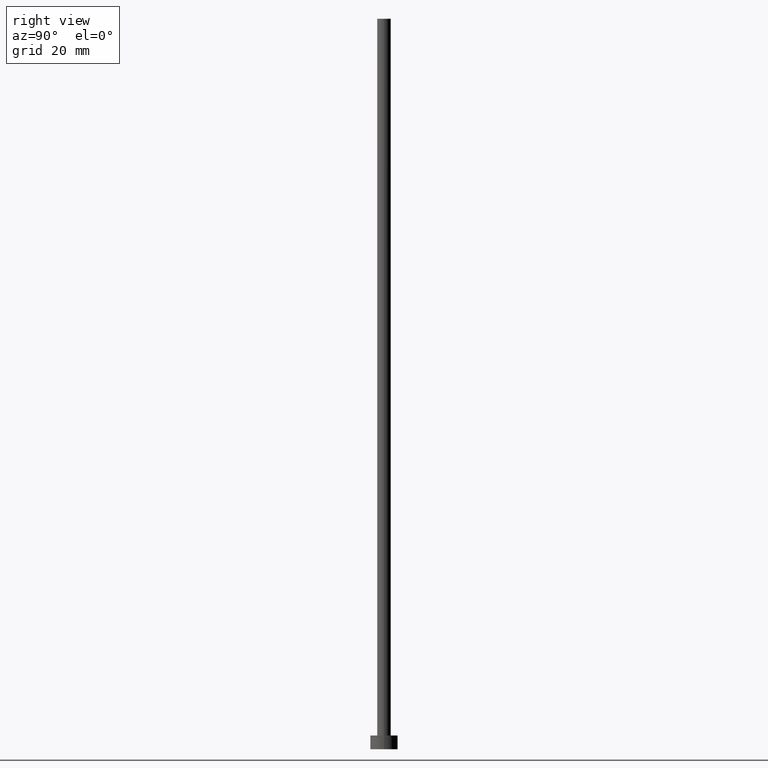
[diagram: clean part render]
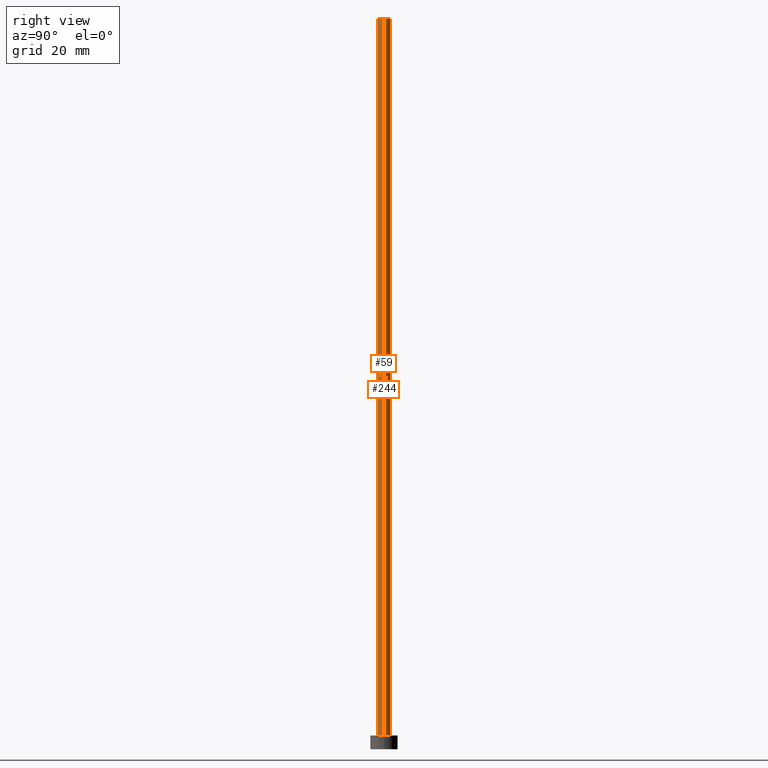
[diagram: same view with one multi-face feature highlighted, each face labeled with its STEP entity id]
A machine part, right view. The highlighted faces form ONE feature: a constant-radius fillet chain: 2 tangent blend faces with common blend radius 1.5 mm. The faces share edges in the B-rep.
Their STEP definitions:
[1] entity #244 (Cylinder):
#4 = VERTEX_POINT ( 'NONE', #164 ) ;
#10 = CARTESIAN_POINT ( 'NONE',  ( 1.500000000000000222, 1.836970198721030181E-16, 3.000000000000000000 ) ) ;
#15 = EDGE_CURVE ( 'NONE', #68, #62, #43, .T. ) ;
#21 = ORIENTED_EDGE ( 'NONE', *, *, #123, .T. ) ;
#27 = ORIENTED_EDGE ( 'NONE', *, *, #211, .F. ) ;
#37 = DIRECTION ( 'NONE',  ( -0.000000000000000000, -0.000000000000000000, -1.000000000000000000 ) ) ;
#39 = CARTESIAN_POINT ( 'NONE',  ( -1.500000000000000222, 0.000000000000000000, 3.000000000000000000 ) ) ;
#43 = CIRCLE ( 'NONE', #102, 1.500000000000000222 ) ;
#62 = VERTEX_POINT ( 'NONE', #39 ) ;
#64 = ORIENTED_EDGE ( 'NONE', *, *, #190, .F. ) ;
#68 = VERTEX_POINT ( 'NONE', #10 ) ;
#76 = CARTESIAN_POINT ( 'NONE',  ( -1.500000000000000222, 0.000000000000000000, 160.0000000000000000 ) ) ;
#87 = CYLINDRICAL_SURFACE ( 'NONE', #130, 1.500000000000000222 ) ;
#102 = AXIS2_PLACEMENT_3D ( 'NONE', #139, #215, #106 ) ;
#106 = DIRECTION ( 'NONE',  ( 1.000000000000000000, 0.000000000000000000, 0.000000000000000000 ) ) ;
#110 = LINE ( 'NONE', #127, #193 ) ;
#123 = EDGE_CURVE ( 'NONE', #143, #68, #110, .T. ) ;
#127 = CARTESIAN_POINT ( 'NONE',  ( 1.500000000000000222, 1.836970198721030181E-16, 160.0000000000000000 ) ) ;
#130 = AXIS2_PLACEMENT_3D ( 'NONE', #189, #37, #170 ) ;
#133 = AXIS2_PLACEMENT_3D ( 'NONE', #149, #225, #210 ) ;
#139 = CARTESIAN_POINT ( 'NONE',  ( 0.000000000000000000, 0.000000000000000000, 3.000000000000000000 ) ) ;
#141 = ORIENTED_EDGE ( 'NONE', *, *, #15, .T. ) ;
#143 = VERTEX_POINT ( 'NONE', #184 ) ;
#149 = CARTESIAN_POINT ( 'NONE',  ( 0.000000000000000000, 0.000000000000000000, 160.0000000000000000 ) ) ;
#164 = CARTESIAN_POINT ( 'NONE',  ( -1.500000000000000222, 0.000000000000000000, 160.0000000000000000 ) ) ;
#165 = LINE ( 'NONE', #76, #172 ) ;
#170 = DIRECTION ( 'NONE',  ( -1.000000000000000000, 0.000000000000000000, 0.000000000000000000 ) ) ;
#172 = VECTOR ( 'NONE', #208, 1000.000000000000000 ) ;
#184 = CARTESIAN_POINT ( 'NONE',  ( 1.500000000000000222, 1.836970198721030181E-16, 160.0000000000000000 ) ) ;
#189 = CARTESIAN_POINT ( 'NONE',  ( 0.000000000000000000, 0.000000000000000000, 160.0000000000000000 ) ) ;
#190 = EDGE_CURVE ( 'NONE', #143, #4, #233, .T. ) ;
#193 = VECTOR ( 'NONE', #250, 1000.000000000000000 ) ;
#208 = DIRECTION ( 'NONE',  ( -0.000000000000000000, -0.000000000000000000, -1.000000000000000000 ) ) ;
#209 = FACE_OUTER_BOUND ( 'NONE', #241, .T. ) ;
#210 = DIRECTION ( 'NONE',  ( 1.000000000000000000, 0.000000000000000000, 0.000000000000000000 ) ) ;
#211 = EDGE_CURVE ( 'NONE', #4, #62, #165, .T. ) ;
#215 = DIRECTION ( 'NONE',  ( 0.000000000000000000, 0.000000000000000000, 1.000000000000000000 ) ) ;
#225 = DIRECTION ( 'NONE',  ( 0.000000000000000000, 0.000000000000000000, 1.000000000000000000 ) ) ;
#233 = CIRCLE ( 'NONE', #133, 1.500000000000000222 ) ;
#241 = EDGE_LOOP ( 'NONE', ( #64, #21, #141, #27 ) ) ;
#244 = ADVANCED_FACE ( 'NONE', ( #209 ), #87, .T. ) ;
#250 = DIRECTION ( 'NONE',  ( -0.000000000000000000, -0.000000000000000000, -1.000000000000000000 ) ) ;
[2] entity #59 (Cylinder):
#4 = VERTEX_POINT ( 'NONE', #164 ) ;
#10 = CARTESIAN_POINT ( 'NONE',  ( 1.500000000000000222, 1.836970198721030181E-16, 3.000000000000000000 ) ) ;
#14 = DIRECTION ( 'NONE',  ( 0.000000000000000000, 0.000000000000000000, 1.000000000000000000 ) ) ;
#19 = CIRCLE ( 'NONE', #54, 1.500000000000000222 ) ;
#39 = CARTESIAN_POINT ( 'NONE',  ( -1.500000000000000222, 0.000000000000000000, 3.000000000000000000 ) ) ;
#54 = AXIS2_PLACEMENT_3D ( 'NONE', #167, #223, #191 ) ;
#59 = ADVANCED_FACE ( 'NONE', ( #75 ), #171, .T. ) ;
#62 = VERTEX_POINT ( 'NONE', #39 ) ;
#68 = VERTEX_POINT ( 'NONE', #10 ) ;
#75 = FACE_OUTER_BOUND ( 'NONE', #122, .T. ) ;
#76 = CARTESIAN_POINT ( 'NONE',  ( -1.500000000000000222, 0.000000000000000000, 160.0000000000000000 ) ) ;
#92 = DIRECTION ( 'NONE',  ( -0.000000000000000000, -0.000000000000000000, -1.000000000000000000 ) ) ;
#93 = DIRECTION ( 'NONE',  ( 1.000000000000000000, 0.000000000000000000, 0.000000000000000000 ) ) ;
#96 = CIRCLE ( 'NONE', #235, 1.500000000000000222 ) ;
#107 = EDGE_CURVE ( 'NONE', #4, #143, #96, .T. ) ;
#110 = LINE ( 'NONE', #127, #193 ) ;
#116 = EDGE_CURVE ( 'NONE', #62, #68, #19, .T. ) ;
#117 = ORIENTED_EDGE ( 'NONE', *, *, #116, .T. ) ;
#122 = EDGE_LOOP ( 'NONE', ( #238, #203, #183, #117 ) ) ;
#123 = EDGE_CURVE ( 'NONE', #143, #68, #110, .T. ) ;
#127 = CARTESIAN_POINT ( 'NONE',  ( 1.500000000000000222, 1.836970198721030181E-16, 160.0000000000000000 ) ) ;
#143 = VERTEX_POINT ( 'NONE', #184 ) ;
#164 = CARTESIAN_POINT ( 'NONE',  ( -1.500000000000000222, 0.000000000000000000, 160.0000000000000000 ) ) ;
#165 = LINE ( 'NONE', #76, #172 ) ;
#167 = CARTESIAN_POINT ( 'NONE',  ( 0.000000000000000000, 0.000000000000000000, 3.000000000000000000 ) ) ;
#171 = CYLINDRICAL_SURFACE ( 'NONE', #188, 1.500000000000000222 ) ;
#172 = VECTOR ( 'NONE', #208, 1000.000000000000000 ) ;
#183 = ORIENTED_EDGE ( 'NONE', *, *, #211, .T. ) ;
#184 = CARTESIAN_POINT ( 'NONE',  ( 1.500000000000000222, 1.836970198721030181E-16, 160.0000000000000000 ) ) ;
#187 = CARTESIAN_POINT ( 'NONE',  ( 0.000000000000000000, 0.000000000000000000, 160.0000000000000000 ) ) ;
#188 = AXIS2_PLACEMENT_3D ( 'NONE', #212, #92, #246 ) ;
#191 = DIRECTION ( 'NONE',  ( 1.000000000000000000, 0.000000000000000000, 0.000000000000000000 ) ) ;
#193 = VECTOR ( 'NONE', #250, 1000.000000000000000 ) ;
#203 = ORIENTED_EDGE ( 'NONE', *, *, #107, .F. ) ;
#208 = DIRECTION ( 'NONE',  ( -0.000000000000000000, -0.000000000000000000, -1.000000000000000000 ) ) ;
#211 = EDGE_CURVE ( 'NONE', #4, #62, #165, .T. ) ;
#212 = CARTESIAN_POINT ( 'NONE',  ( 0.000000000000000000, 0.000000000000000000, 160.0000000000000000 ) ) ;
#223 = DIRECTION ( 'NONE',  ( 0.000000000000000000, 0.000000000000000000, 1.000000000000000000 ) ) ;
#235 = AXIS2_PLACEMENT_3D ( 'NONE', #187, #14, #93 ) ;
#238 = ORIENTED_EDGE ( 'NONE', *, *, #123, .F. ) ;
#246 = DIRECTION ( 'NONE',  ( -1.000000000000000000, 0.000000000000000000, 0.000000000000000000 ) ) ;
#250 = DIRECTION ( 'NONE',  ( -0.000000000000000000, -0.000000000000000000, -1.000000000000000000 ) ) ;